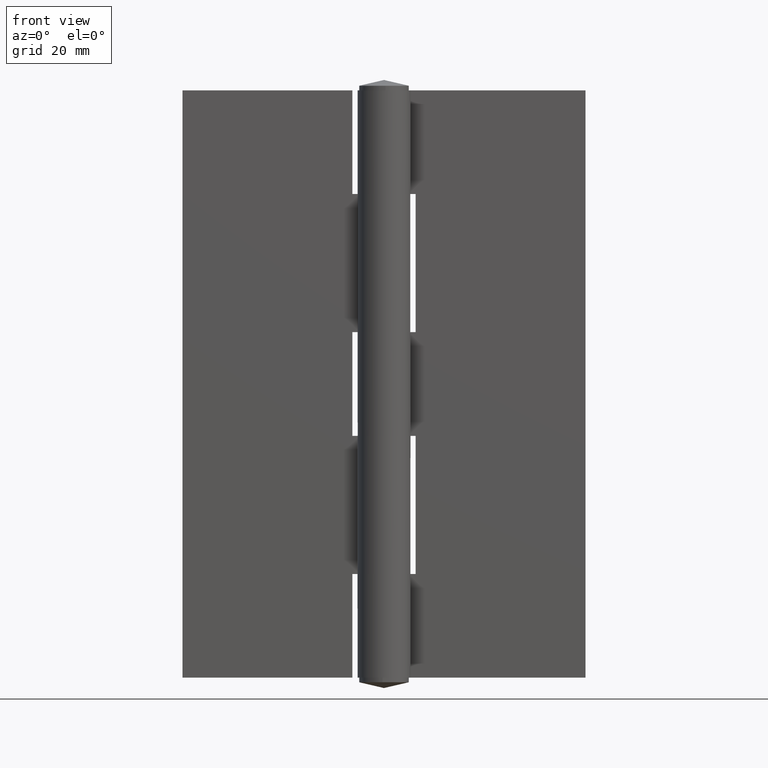
[diagram: clean part render]
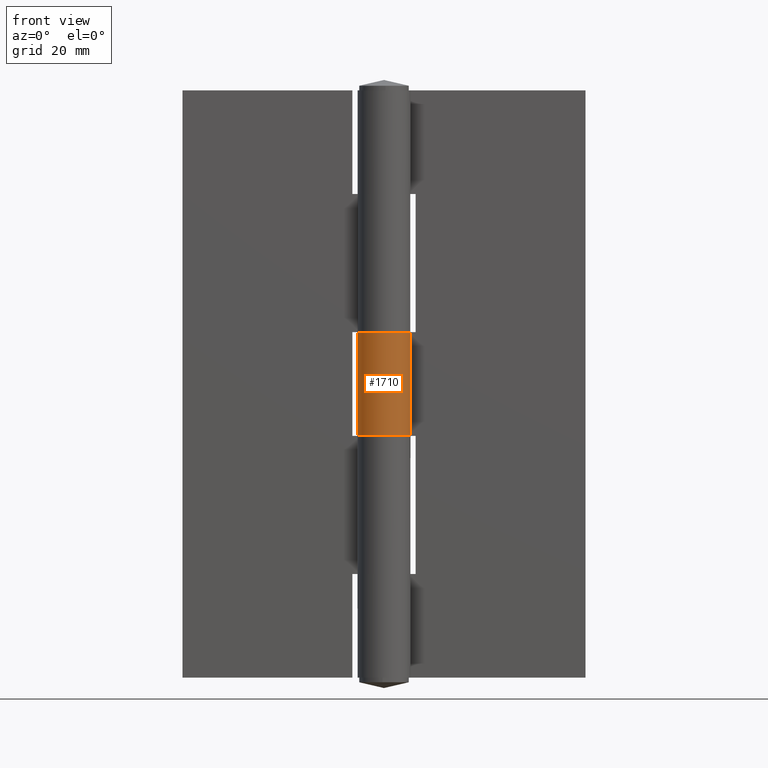
[diagram: same view with one face highlighted and labeled with its STEP entity id]
A machine part, front view. The second image highlights one B-rep face of the part: STEP entity #1710.
In plain terms, the highlighted face is a freeform B-spline surface patch.
Its self-contained STEP definition (entity closure, byte-faithful):
#1321=CARTESIAN_POINT('',(3.687480305031595,2.749998000000000,60.0));
#1322=VERTEX_POINT('',#1321);
#1328=CARTESIAN_POINT('',(3.687480305031595,2.749998000000000,42.0));
#1329=VERTEX_POINT('',#1328);
#1330=CARTESIAN_POINT('',(3.687480305031595,2.749998000000000,60.0));
#1331=CARTESIAN_POINT('',(3.687480305031595,2.749998000000000,42.0));
#1332=QUASI_UNIFORM_CURVE('',1,(#1330,#1331),.UNSPECIFIED.,.F.,.U.);
#1333=EDGE_CURVE('',#1322,#1329,#1332,.T.);
#1600=CARTESIAN_POINT('',(0.143339596067297,4.597766170674543,60.450000000000003));
#1601=CARTESIAN_POINT('',(0.143339596067297,4.597766170674543,41.538749999999993));
#1602=CARTESIAN_POINT('',(-5.776949616985069,4.782336640963597,60.450000000000003));
#1603=CARTESIAN_POINT('',(-5.776949616985069,4.782336640963597,41.538750000000000));
#1604=CARTESIAN_POINT('',(-4.490131844530618,-0.999357803157632,60.450000000000003));
#1605=CARTESIAN_POINT('',(-4.490131844530618,-0.999357803157632,41.538749999999993));
#1606=CARTESIAN_POINT('',(-3.203314072076169,-6.781052247278860,60.450000000000003));
#1607=CARTESIAN_POINT('',(-3.203314072076169,-6.781052247278860,41.538750000000000));
#1608=CARTESIAN_POINT('',(2.079838921608947,-4.102958695887701,60.450000000000003));
#1609=CARTESIAN_POINT('',(2.079838921608947,-4.102958695887701,41.538749999999993));
#1610=CARTESIAN_POINT('',(7.362991915294061,-1.424865144496543,60.450000000000003));
#1611=CARTESIAN_POINT('',(7.362991915294061,-1.424865144496543,41.538750000000000));
#1612=CARTESIAN_POINT('',(3.460350677552145,3.030837044178452,60.450000000000003));
#1613=CARTESIAN_POINT('',(3.460350677552145,3.030837044178452,41.538749999999993));
#1621=(BOUNDED_SURFACE()B_SPLINE_SURFACE(1,2,((#1600,#1602,#1604,#1606,#1608,#1610,#1612),(#1601,#1603,#1605,#1607,#1609,#1611,#1613)),.UNSPECIFIED.,.F.,.F.,.U.)B_SPLINE_SURFACE_WITH_KNOTS((2,2),(3,2,2,3),(0.0,18.911250000000020),(0.0,9.007431044261567,18.014862088523142,27.022293132784700),.UNSPECIFIED.)GEOMETRIC_REPRESENTATION_ITEM()RATIONAL_B_SPLINE_SURFACE(((1.0,0.613366643455859,1.0,0.613366643455859,1.0,0.613366643455859,1.0),(1.0,0.613366643455859,1.0,0.613366643455859,1.0,0.613366643455859,1.0)))REPRESENTATION_ITEM('')SURFACE());
#1622=CARTESIAN_POINT('',(0.0,4.599998000000000,60.0));
#1623=VERTEX_POINT('',#1622);
#1624=CARTESIAN_POINT('',(3.687480305031595,2.749998000000000,60.0));
#1625=CARTESIAN_POINT('',(3.888789879119522,2.480156331956527,59.999999999999837));
#1626=CARTESIAN_POINT('',(4.231745366004669,1.896005089009506,60.000000000000327));
#1627=CARTESIAN_POINT('',(4.533264564620474,0.959511839671210,59.999999999999432));
#1628=CARTESIAN_POINT('',(4.638619480821907,-0.066233234218873,60.000000000000789));
#1629=CARTESIAN_POINT('',(4.520196386330575,-1.028464346043532,59.999999999999552));
#1630=CARTESIAN_POINT('',(4.211600962409837,-1.909523728280906,59.999999999999837));
#1631=CARTESIAN_POINT('',(3.752264242484570,-2.722196913647286,59.999999999999552));
#1632=CARTESIAN_POINT('',(3.192691779081403,-3.348908723088376,59.999999999999403));
#1633=CARTESIAN_POINT('',(2.532434023705643,-3.860102804750497,60.000000000000057));
#1634=CARTESIAN_POINT('',(1.747022652239767,-4.302350949935674,60.000000000000007));
#1635=CARTESIAN_POINT('',(0.671643490792815,-4.608496537054517,60.000000000000043));
#1636=CARTESIAN_POINT('',(-0.443283768316936,-4.614446800094746,59.999999999999957));
#1637=CARTESIAN_POINT('',(-1.356479001456233,-4.420833142220153,60.000000000000043));
#1638=CARTESIAN_POINT('',(-2.280802180020908,-4.044748424654886,60.000000000000128));
#1639=CARTESIAN_POINT('',(-3.150056730128393,-3.421814284608362,59.999999999999559));
#1640=CARTESIAN_POINT('',(-3.850455956810862,-2.577762795678722,60.000000000000547));
#1641=CARTESIAN_POINT('',(-4.330022488830579,-1.664946414375678,60.000000000001691));
#1642=CARTESIAN_POINT('',(-4.578240933281156,-0.727775784152069,59.999999999993094));
#1643=CARTESIAN_POINT('',(-4.621176468691688,0.236970895573226,60.000000000013557));
#1644=CARTESIAN_POINT('',(-4.489787859793668,1.145819724571151,59.999999999992312));
#1645=CARTESIAN_POINT('',(-4.183328660082644,1.978241697483643,60.000000000002721));
#1646=CARTESIAN_POINT('',(-3.744396135826632,2.708831207203433,59.999999999999517));
#1647=CARTESIAN_POINT('',(-3.116343317878645,3.442501659317425,60.000000000000711));
#1648=CARTESIAN_POINT('',(-2.302975157734144,4.032128256958624,59.999999999997613));
#1649=CARTESIAN_POINT('',(-1.202235569767751,4.487199207042790,60.000000000006402));
#1650=CARTESIAN_POINT('',(-0.464940232554474,4.600211841402765,59.999999999989477));
#1651=CARTESIAN_POINT('',(0.0,4.599998000000000,60.0));
#1652=B_SPLINE_CURVE_WITH_KNOTS('',3,(#1624,#1625,#1626,#1627,#1628,#1629,#1630,#1631,#1632,#1633,#1634,#1635,#1636,#1637,#1638,#1639,#1640,#1641,#1642,#1643,#1644,#1645,#1646,#1647,#1648,#1649,#1650,#1651),.UNSPECIFIED.,.F.,.U.,(4,1,1,1,1,1,1,1,1,1,1,1,1,1,1,1,1,1,1,1,1,1,1,1,1,4),(0.000000589395249,1.009971980792766,2.019981767876764,2.933805605296421,4.088116258366654,4.905752341407496,5.723353037291613,6.877555329807109,7.406615771408994,8.224254533064702,9.570940111467698,10.725255640288941,11.542861759063561,12.360391507635340,13.707097714505380,14.717103610719960,15.630926084005360,16.785238441505761,17.602853190076299,18.516569304577398,19.526585367402419,20.248025147270440,21.065663551556462,22.412348834622730,23.229975674669479,24.624714492442120),.UNSPECIFIED.);
#1653=EDGE_CURVE('',#1322,#1623,#1652,.T.);
#1654=ORIENTED_EDGE('',*,*,#1653,.T.);
#1655=CARTESIAN_POINT('',(0.004289521635677,4.599998000000000,60.0));
#1656=VERTEX_POINT('',#1655);
#1657=CARTESIAN_POINT('',(0.0,4.599998000000000,60.0));
#1658=CARTESIAN_POINT('',(0.004289521635677,4.599998000000000,60.0));
#1659=QUASI_UNIFORM_CURVE('',1,(#1657,#1658),.UNSPECIFIED.,.F.,.U.);
#1660=EDGE_CURVE('',#1623,#1656,#1659,.T.);
#1661=ORIENTED_EDGE('',*,*,#1660,.T.);
#1662=CARTESIAN_POINT('',(0.004289521635677,4.599998000000000,42.0));
#1663=VERTEX_POINT('',#1662);
#1664=CARTESIAN_POINT('',(0.004289521635677,4.599998000000000,60.0));
#1665=CARTESIAN_POINT('',(0.004289521635677,4.599998000000000,42.0));
#1666=QUASI_UNIFORM_CURVE('',1,(#1664,#1665),.UNSPECIFIED.,.F.,.U.);
#1667=EDGE_CURVE('',#1656,#1663,#1666,.T.);
#1668=ORIENTED_EDGE('',*,*,#1667,.T.);
#1669=CARTESIAN_POINT('',(0.0,4.599998000000000,42.0));
#1670=VERTEX_POINT('',#1669);
#1671=CARTESIAN_POINT('',(0.004289521635677,4.599998000000000,42.0));
#1672=CARTESIAN_POINT('',(0.0,4.599998000000000,42.0));
#1673=QUASI_UNIFORM_CURVE('',1,(#1671,#1672),.UNSPECIFIED.,.F.,.U.);
#1674=EDGE_CURVE('',#1663,#1670,#1673,.T.);
#1675=ORIENTED_EDGE('',*,*,#1674,.T.);
#1676=CARTESIAN_POINT('',(0.0,4.599998000000000,42.0));
#1677=CARTESIAN_POINT('',(-0.336653216979123,4.600037344323929,41.999999999999808));
#1678=CARTESIAN_POINT('',(-1.074105432376609,4.518742167082058,42.000000000000369));
#1679=CARTESIAN_POINT('',(-2.167643403765010,4.119404905907505,41.999999999999488));
#1680=CARTESIAN_POINT('',(-3.091481934525040,3.464091345191827,42.000000000000362));
#1681=CARTESIAN_POINT('',(-3.727854534663329,2.736429194235739,41.999999999999652));
#1682=CARTESIAN_POINT('',(-4.199888979441349,1.950713956365916,42.000000000000199));
#1683=CARTESIAN_POINT('',(-4.519682147247461,1.053294466038882,42.000000000000092));
#1684=CARTESIAN_POINT('',(-4.629857427278104,0.075657511844889,42.000000000000568));
#1685=CARTESIAN_POINT('',(-4.557595984409566,-0.758177275157128,41.999999999998963));
#1686=CARTESIAN_POINT('',(-4.340282668259781,-1.615188617803813,42.000000000001840));
#1687=CARTESIAN_POINT('',(-3.935082352608034,-2.460235293066275,41.999999999999581));
#1688=CARTESIAN_POINT('',(-3.248278017911074,-3.314554666188367,41.999999999999083));
#1689=CARTESIAN_POINT('',(-2.433692354727195,-3.951587175249445,42.000000000003453));
#1690=CARTESIAN_POINT('',(-1.556005647667540,-4.357869345952217,41.999999999997108));
#1691=CARTESIAN_POINT('',(-0.604081715011603,-4.596402638868854,42.000000000001577));
#1692=CARTESIAN_POINT('',(0.446419926350591,-4.629159865920242,41.999999999999638));
#1693=CARTESIAN_POINT('',(1.659283832650718,-4.351498411734666,42.000000000000242));
#1694=CARTESIAN_POINT('',(2.627925212638648,-3.826290373432442,41.999999999999019));
#1695=CARTESIAN_POINT('',(3.313005630819069,-3.216675223309208,41.999999999997598));
#1696=CARTESIAN_POINT('',(3.784797945943090,-2.647720791111591,42.000000000001549));
#1697=CARTESIAN_POINT('',(4.211891672197074,-1.927971437989767,41.999999999999062));
#1698=CARTESIAN_POINT('',(4.506063962413511,-1.073469753523043,42.000000000000313));
#1699=CARTESIAN_POINT('',(4.616691261205046,-0.211379942771398,42.000000000000028));
#1700=CARTESIAN_POINT('',(4.582979924603170,0.640261344999768,41.999999999999837));
#1701=CARTESIAN_POINT('',(4.346296480032300,1.661550167926975,42.000000000000149));
#1702=CARTESIAN_POINT('',(3.965593515461757,2.377419326719759,42.000000000000107));
#1703=CARTESIAN_POINT('',(3.687480305031595,2.749998000000000,42.0));
#1704=B_SPLINE_CURVE_WITH_KNOTS('',3,(#1676,#1677,#1678,#1679,#1680,#1681,#1682,#1683,#1684,#1685,#1686,#1687,#1688,#1689,#1690,#1691,#1692,#1693,#1694,#1695,#1696,#1697,#1698,#1699,#1700,#1701,#1702,#1703),.UNSPECIFIED.,.F.,.U.,(4,1,1,1,1,1,1,1,1,1,1,1,1,1,1,1,1,1,1,1,1,1,1,1,1,4),(0.000000588857318,1.009971980850715,2.212361094502047,3.462860513762355,4.376690287454732,5.098130009005658,6.204211584956600,7.214245523164397,8.031876338398355,8.705210705072016,9.859510330406177,10.821445154994359,11.975705349781240,12.937541952204411,13.707097713909381,14.909485754415639,16.063791982537690,17.410488022385110,18.180026439257620,18.805197119177510,19.622774013758018,20.680902353154849,21.498530251642819,22.219969780058889,23.229975675335272,24.624714492442450),.UNSPECIFIED.);
#1705=EDGE_CURVE('',#1670,#1329,#1704,.T.);
#1706=ORIENTED_EDGE('',*,*,#1705,.T.);
#1707=ORIENTED_EDGE('',*,*,#1333,.F.);
#1708=EDGE_LOOP('',(#1654,#1661,#1668,#1675,#1706,#1707));
#1709=FACE_OUTER_BOUND('',#1708,.T.);
#1710=ADVANCED_FACE('',(#1709),#1621,.T.);